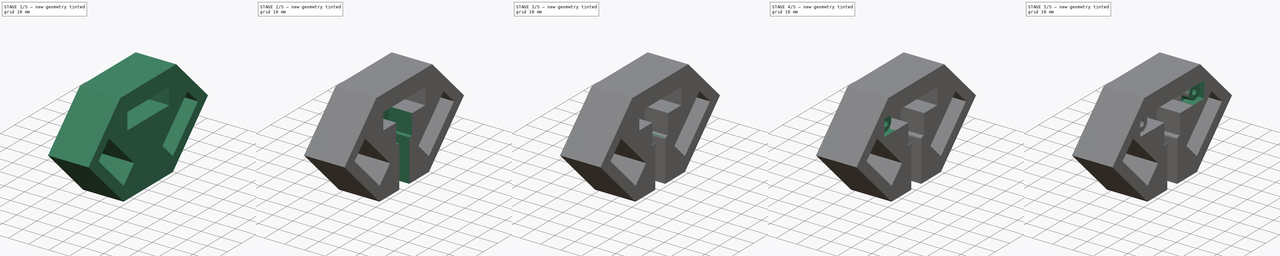
[diagram: build sequence overview — one tinted view per stage of 5, left to right]
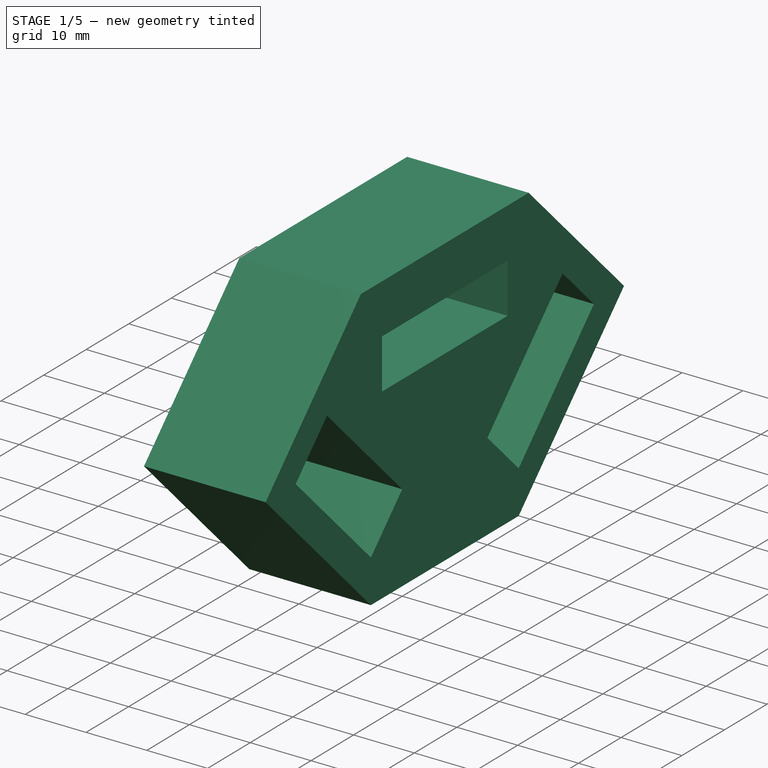
[diagram: stage 1 of 5 — iso view after this stage's code; geometry added in this stage tinted green]
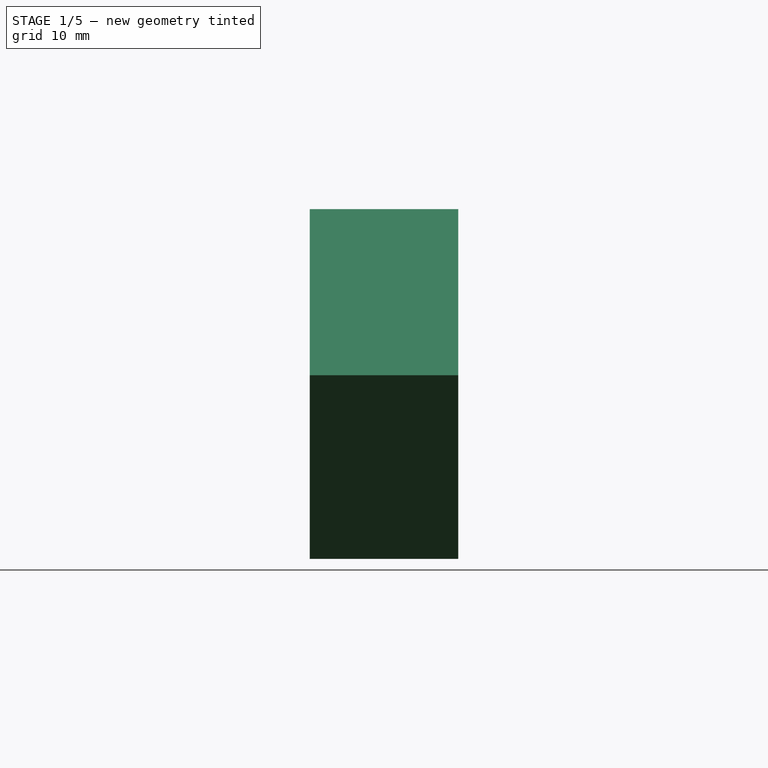
[diagram: stage 1 of 5 — front view after this stage's code; geometry added in this stage tinted green]
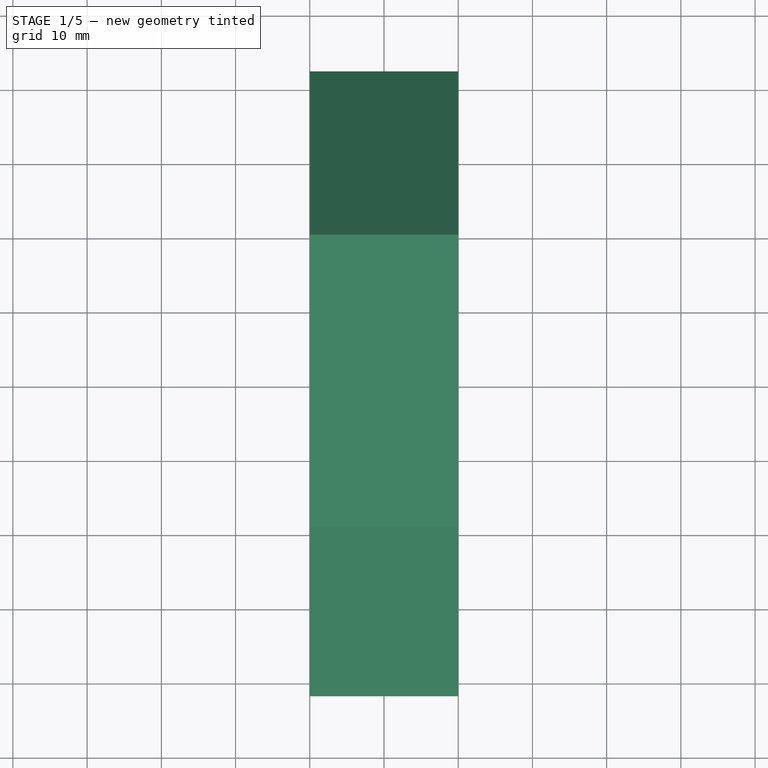
[diagram: stage 1 of 5 — top view after this stage's code; geometry added in this stage tinted green]
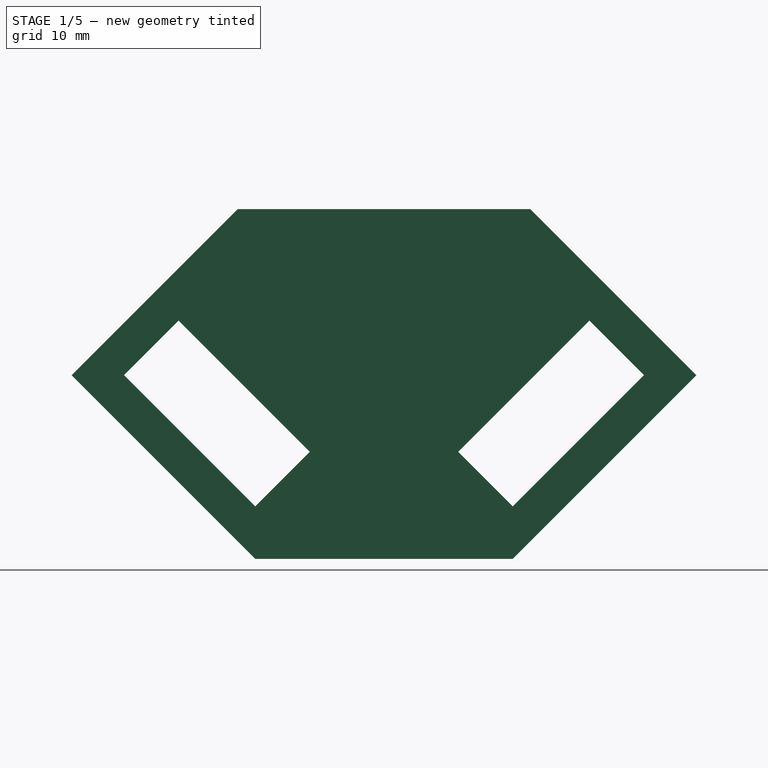
[diagram: stage 1 of 5 — right view after this stage's code; geometry added in this stage tinted green]
FCSTD DOCUMENT  (FreeCAD 0.19R24267 +99 (Git))
Label: Endplatte
License: All rights reserved
LicenseURL: http://en.wikipedia.org/wiki/All_rights_reserved
objects: Sketcher::SketchObject×13, PartDesign::Pocket×10, PartDesign::Pad×3, PartDesign::Fillet×3, PartDesign::Body×1
note: 46 computed .brp shape members not serialized (recipe doc carries the construction recipe); baked Part::Feature solids carry a one-line shape summary decoded from their .brp

FEATURE [Sketcher::SketchObject] Sketch
  FullyConstrained = true
  MapMode = 5
  Placement = pos=(0,0,0) rot=(0.57735,0.57735,0.57735;2.0944rad)
  Support = -> [YZ_Plane001]
  sketch-geometry (46):
    g0: LineSegment StartX=-19.7132 StartY=22.3894 StartZ=0 EndX=19.7132 EndY=22.3894 EndZ=0
    g1: LineSegment StartX=-19.7132 StartY=22.3894 StartZ=0 EndX=-42.1026 EndY=0 EndZ=0
    g2: LineSegment StartX=19.7132 StartY=22.3894 StartZ=0 EndX=42.1026 EndY=0 EndZ=0
    g3: LineSegment StartX=19.7132 StartY=22.3894 StartZ=0 EndX=42.1026 EndY=22.3894 EndZ=0
    g4: LineSegment StartX=42.1026 StartY=22.3894 StartZ=0 EndX=42.1026 EndY=0 EndZ=0
    g5: LineSegment StartX=-19.7132 StartY=22.3894 StartZ=0 EndX=-42.1026 EndY=22.3894 EndZ=0
    g6: LineSegment StartX=-42.1026 StartY=22.3894 StartZ=0 EndX=-42.1026 EndY=0 EndZ=0
    g7: GeomPoint X=0 Y=22.3894 Z=0
    g8: LineSegment StartX=-42.1026 StartY=0 StartZ=0 EndX=-17.3539 EndY=-24.7487 EndZ=0
    g9: LineSegment StartX=-17.3539 StartY=-24.7487 StartZ=0 EndX=17.3539 EndY=-24.7487 EndZ=0
    g10: LineSegment StartX=17.3539 StartY=-24.7487 StartZ=0 EndX=42.1026 EndY=0 EndZ=0
    g11: LineSegment StartX=42.1026 StartY=0 StartZ=0 EndX=42.1026 EndY=-24.7487 EndZ=0
    g12: LineSegment StartX=-42.1026 StartY=0 StartZ=0 EndX=-42.1026 EndY=-24.7487 EndZ=0
    g13: LineSegment StartX=-42.1026 StartY=-24.7487 StartZ=0 EndX=-17.3539 EndY=-24.7487 EndZ=0
    g14: LineSegment StartX=17.3539 StartY=-24.7487 StartZ=0 EndX=42.1026 EndY=-24.7487 EndZ=0
    g15: LineSegment StartX=-24.425 StartY=-24.7487 StartZ=0 EndX=-10 EndY=-10.3238 EndZ=0
    g16: GeomPoint X=-20.8894 Y=-21.2132 Z=0
    g17: LineSegment StartX=-10 StartY=-10.3238 StartZ=0 EndX=-24.425 EndY=-10.3238 EndZ=0
    g18: LineSegment StartX=-24.425 StartY=-10.3238 StartZ=0 EndX=-24.425 EndY=-24.7487 EndZ=0
    g19: LineSegment StartX=24.425 StartY=-24.7487 StartZ=0 EndX=20.8894 EndY=-21.2132 EndZ=0
    g20: LineSegment StartX=20.8894 StartY=-21.2132 StartZ=0 EndX=10 EndY=-10.3238 EndZ=0
    g21: LineSegment StartX=10 StartY=-10.3238 StartZ=0 EndX=24.425 EndY=-10.3238 EndZ=0
    g22: LineSegment StartX=24.425 StartY=-10.3238 StartZ=0 EndX=24.425 EndY=-24.7487 EndZ=0
    g23: LineSegment StartX=-42.1026 StartY=-7.07107 StartZ=0 EndX=-27.6777 EndY=7.35391 EndZ=0
    g24: GeomPoint X=-38.5671 Y=-3.53553 Z=0
    g25: LineSegment StartX=-27.6777 StartY=7.35391 StartZ=0 EndX=-10 EndY=-10.3238 EndZ=0
    g26: LineSegment StartX=-35.0316 StartY=-7.8e-15 StartZ=0 EndX=-17.3539 EndY=-17.6777 EndZ=0
    g27: LineSegment StartX=42.1026 StartY=-7.07107 StartZ=0 EndX=38.5671 EndY=-3.53553 EndZ=0
    g28: LineSegment StartX=38.5671 StartY=-3.53553 StartZ=0 EndX=27.6777 EndY=7.35391 EndZ=0
    g29: LineSegment StartX=27.6777 StartY=7.35391 StartZ=0 EndX=10 EndY=-10.3238 EndZ=0
    g30: LineSegment StartX=35.0316 StartY=-1e-15 StartZ=0 EndX=17.3539 EndY=-17.6777 EndZ=0
    g31: LineSegment StartX=-14.75 StartY=17.3894 StartZ=0 EndX=14.75 EndY=17.3894 EndZ=0
    g32: LineSegment StartX=14.75 StartY=17.3894 StartZ=0 EndX=14.75 EndY=4.38944 EndZ=0
    g33: LineSegment StartX=14.75 StartY=4.38944 StartZ=0 EndX=-14.75 EndY=4.38944 EndZ=0
    g34: LineSegment StartX=-14.75 StartY=4.38944 StartZ=0 EndX=-14.75 EndY=17.3894 EndZ=0
    g35: GeomPoint X=0 Y=17.3894 Z=0
    g36: GeomPoint X=-14.75 Y=10.8894 Z=0
    g37: GeomPoint X=14.75 Y=10.8894 Z=0
    g38: LineSegment StartX=-14.75 StartY=10.8894 StartZ=0 EndX=-18.5 EndY=10.8894 EndZ=0
    g39: Circle CenterX=-18.5 CenterY=10.8894 CenterZ=0 NormalX=0 NormalY=0 NormalZ=1 AngleXU=0 Radius=3.75
    g40: LineSegment StartX=14.75 StartY=10.8894 StartZ=0 EndX=18.5 EndY=10.8894 EndZ=0
    g41: Circle CenterX=18.5 CenterY=10.8894 CenterZ=0 NormalX=0 NormalY=0 NormalZ=1 AngleXU=0 Radius=3.75
    g42: LineSegment StartX=-24.8566 StartY=17.246 StartZ=0 EndX=-18.5 EndY=10.8894 EndZ=0
    g43: LineSegment StartX=-24.8566 StartY=4.53284 StartZ=0 EndX=-18.5 EndY=10.8894 EndZ=0
    g44: LineSegment StartX=-35.0316 StartY=-7.8e-15 StartZ=0 EndX=-38.5671 EndY=3.53553 EndZ=0
    g45: LineSegment StartX=35.0316 StartY=-1e-15 StartZ=0 EndX=38.5671 EndY=3.53553 EndZ=0
  constraints (124):
    c: Horizontal(g0)
    c: Coincident(g1,g0)
    c: Coincident(g2,g0)
    c: Coincident(g3,g0)
    c: Horizontal(g3)
    c: Coincident(g4,g3)
    c: Coincident(g4,g2)
    c: Coincident(g5,g0)
    c: Horizontal(g5)
    c: Coincident(g6,g5)
    c: Coincident(g6,g1)
    c: Vertical(g6)
    c: Equal(g3,g5)
    c: Equal(g6,g4)
    c: Vertical(g4)
    c: Symmetric(g0,g0,g7)
    c: Coincident(g8,g1)
    c: Coincident(g9,g8)
    c: Horizontal(g9)
    c: Coincident(g10,g9)
    c: Coincident(g10,g2)
    c: Coincident(g11,g2)
    c: Vertical(g11)
    c: Coincident(g12,g1)
    c: Vertical(g12)
    c: Coincident(g13,g12)
    c: Coincident(g13,g8)
    c: Horizontal(g13)
    c: Coincident(g14,g9)
    c: Coincident(g14,g11)
    c: Horizontal(g14)
    c: Equal(g14,g13)
    c: Vertical(g7,g-1)
    c: Equal(g13,g12)
    c: Distance(g8) = 35
    c: Equal(g3,g4)
    c: Horizontal(g2,g-1)
    c: PointOnObject(g15,g13)
    c: PointOnObject(g16,g8)
    c: PointOnObject(g16,g15)
    c: Coincident(g17,g15)
    c: Horizontal(g17)
    c: Coincident(g18,g17)
    c: Coincident(g18,g15)
    c: Vertical(g18)
    c: Equal(g17,g18)
    c: PointOnObject(g19,g14)
    c: PointOnObject(g19,g10)
    c: Coincident(g20,g19)
    c: Parallel(g20,g19)
    c: Coincident(g21,g20)
    c: Horizontal(g21)
    c: Coincident(g22,g21)
    c: Coincident(g22,g19)
    c: Vertical(g22)
    c: Equal(g22,g21)
    c: Distance(g15,g20) = 20
    c: PointOnObject(g23,g12)
    c: PointOnObject(g24,g23)
    c: PointOnObject(g24,g8)
    c: Parallel(g15,g23)
    c: Coincident(g25,g23)
    c: Coincident(g25,g15)
    c: Parallel(g25,g8)
    c: PointOnObject(g26,g23)
    c: PointOnObject(g26,g15)
    c: Distance(g26,g23) = 10.4
    c: PointOnObject(g27,g11)
    c: PointOnObject(g27,g10)
    c: Coincident(g28,g27)
    c: Parallel(g27,g28)
    c: Parallel(g25,g26)
    c: Parallel(g20,g28)
    c: Coincident(g29,g28)
    c: Coincident(g29,g20)
    c: PointOnObject(g30,g28)
    c: PointOnObject(g30,g20)
    c: Parallel(g30,g29)
    c: Distance(g30,g28) = 10.4
    c: Parallel(g10,g29)
    c: Coincident(g31,g32)
    c: Coincident(g32,g33)
    c: Coincident(g33,g34)
    c: Coincident(g34,g31)
    c: Horizontal(g31)
    c: Horizontal(g33)
    c: Vertical(g32)
    c: Vertical(g34)
    c: DistanceX(g31,g31) = 29.5
    c: DistanceY(g32,g32) = 13
    c: Symmetric(g31,g31,g35)
    c: PointOnObject(g35,g-2)
    c: Distance(g7,g35) = 5
    c: Symmetric(g31,g33,g36)
    c: Symmetric(g31,g32,g37)
    c: Coincident(g38,g36)
    c: Horizontal(g38)
    c: Coincident(g39,g38)
    c: PointOnObject(g36,g39)
    c: Coincident(g40,g37)
    c: Horizontal(g40)
    c: Coincident(g41,g40)
    c: PointOnObject(g37,g41)
    c: DistanceX(g40,g40) = 3.75
    c: Equal(g40,g38)
    c: Coincident(g42,g38)
    c: PointOnObject(g43,g25)
    c: Coincident(g43,g38)
    c: Parallel(g23,g43)
    c: Equal(g42,g43)
    c: Parallel(g25,g42)
    c: PointOnObject(g42,g1)
    c: Distance(g30,g19) = 5
    c: Distance(g26,g16) = 5
    c: Distance(g30) = 25
    c: Distance(g26) = 25
    c: Coincident(g44,g26)
    c: PointOnObject(g44,g1)
    c: Perpendicular(g1,g44)
    c: Distance(g44) = 5
    c: Coincident(g45,g30)
    c: PointOnObject(g45,g2)
    c: Distance(g45) = 5
    c: Perpendicular(g45,g2)
FEATURE [PartDesign::Pad] Pad
  Direction = (1,1,1)
  Length = 20
  Length2 = 100
  Placement = pos=(0,0,0) rot=(0.57735,0.57735,0.57735;2.0944rad)
  Profile = -> Sketch
  Type = 0
FEATURE [Sketcher::SketchObject] Sketch001
  ExternalGeometry = -> [Pad]
  FullyConstrained = true
  MapMode = 5
  Placement = pos=(20,-8.9e-15,6.7e-15) rot=(0.57735,0.57735,0.57735;2.0944rad)
  Support = -> [Pad]
  sketch-geometry (16):
    g0: LineSegment StartX=-35.0316 StartY=2.22e-14 StartZ=0 EndX=-17.3539 EndY=-17.6777 EndZ=0
    g1: LineSegment StartX=-17.3539 StartY=-17.6777 StartZ=0 EndX=-10 EndY=-10.3238 EndZ=0
    g2: LineSegment StartX=-10 StartY=-10.3238 StartZ=0 EndX=-27.6777 EndY=7.35391 EndZ=0
    g3: LineSegment StartX=-27.6777 StartY=7.35391 StartZ=0 EndX=-35.0316 EndY=2.22e-14 EndZ=0
    g4: GeomPoint X=-29.7283 Y=-12.3744 Z=0
    g5: GeomPoint X=-26.1927 Y=-8.83883 Z=0
    g6: LineSegment StartX=10 StartY=-10.3238 StartZ=0 EndX=27.6777 EndY=7.35391 EndZ=0
    g7: LineSegment StartX=17.3539 StartY=-17.6777 StartZ=0 EndX=35.0316 EndY=-1.78e-14 EndZ=0
    g8: LineSegment StartX=27.6777 StartY=7.35391 StartZ=0 EndX=35.0316 EndY=-1.78e-14 EndZ=0
    g9: LineSegment StartX=10 StartY=-10.3238 StartZ=0 EndX=17.3539 EndY=-17.6777 EndZ=0
    g10: GeomPoint X=26.1927 Y=-8.83883 Z=0
    g11: GeomPoint X=29.7283 Y=-12.3744 Z=0
    g12: LineSegment StartX=-35.0316 StartY=2.22e-14 StartZ=0 EndX=-38.5671 EndY=-3.53553 EndZ=0
    g13: LineSegment StartX=-35.0316 StartY=2.22e-14 StartZ=0 EndX=-38.5671 EndY=3.53553 EndZ=0
    g14: LineSegment StartX=35.0316 StartY=-1.78e-14 StartZ=0 EndX=38.5671 EndY=3.53553 EndZ=0
    g15: LineSegment StartX=35.0316 StartY=-1.78e-14 StartZ=0 EndX=38.5671 EndY=-3.53553 EndZ=0
  constraints (40):
    c: Coincident(g1,g0)
    c: Coincident(g2,g1)
    c: Coincident(g3,g2)
    c: Coincident(g3,g0)
    c: Parallel(g1,g3)
    c: Parallel(g2,g0)
    c: Parallel(g0,g-3)
    c: Perpendicular(g0,g1)
    c: Distance(g0) = 25
    c: Distance(g1) = 10.4
    c: Symmetric(g0,g0,g5)
    c: Symmetric(g-3,g-3,g4)
    c: Coincident(g8,g6)
    c: Coincident(g8,g7)
    c: Coincident(g9,g6)
    c: Coincident(g9,g7)
    c: Parallel(g7,g6)
    c: Parallel(g7,g-4)
    c: Parallel(g8,g9)
    c: Perpendicular(g7,g8)
    c: Distance(g6) = 25
    c: Distance(g8) = 10.4
    c: Symmetric(g7,g7,g10)
    c: Symmetric(g-4,g-4,g11)
    c: Coincident(g12,g0)
    c: PointOnObject(g12,g-3)
    c: Coincident(g13,g0)
    c: Coincident(g14,g7)
    c: PointOnObject(g13,g-6)
    c: PointOnObject(g14,g-5)
    c: Coincident(g15,g7)
    c: PointOnObject(g15,g-4)
    c: Perpendicular(g-4,g15)
    c: Perpendicular(g-5,g14)
    c: Perpendicular(g-6,g13)
    c: Perpendicular(g-3,g12)
    c: Distance(g15) = 5
    c: Distance(g13) = 5
    c: Distance(g12) = 5
    c: Distance(g14) = 5
FEATURE [PartDesign::Pocket] Pocket
  BaseFeature = -> Pad
  Length = 20
  Length2 = 100
  Placement = pos=(0,0,0) rot=(0.57735,0.57735,0.57735;2.0944rad)
  Profile = -> Sketch001
  Type = 0
FEATURE [Sketcher::SketchObject] Sketch002
  ExternalGeometry = -> [Pocket]
  FullyConstrained = true
  MapMode = 5
  Placement = pos=(20,-1.33e-14,8.9e-15) rot=(0.57735,0.57735,0.57735;2.0944rad)
  Support = -> [Pocket]
  sketch-geometry (8):
    g0: LineSegment StartX=-14.75 StartY=14.2033 StartZ=0 EndX=14.75 EndY=14.2033 EndZ=0
    g1: LineSegment StartX=14.75 StartY=14.2033 StartZ=0 EndX=14.75 EndY=6.00326 EndZ=0
    g2: LineSegment StartX=14.75 StartY=6.00326 StartZ=0 EndX=-14.75 EndY=6.00326 EndZ=0
    g3: LineSegment StartX=-14.75 StartY=6.00326 StartZ=0 EndX=-14.75 EndY=14.2033 EndZ=0
    g4: GeomPoint X=0 Y=14.2033 Z=0
    g5: GeomPoint X=0 Y=22.3894 Z=0
    g6: LineSegment StartX=0 StartY=22.3894 StartZ=0 EndX=0 EndY=14.2033 EndZ=0
    g7: LineSegment StartX=-14.75 StartY=6.00326 StartZ=0 EndX=-20.5385 EndY=0.214749 EndZ=0
  constraints (20):
    c: Coincident(g0,g1)
    c: Coincident(g1,g2)
    c: Coincident(g2,g3)
    c: Coincident(g3,g0)
    c: Horizontal(g0)
    c: Horizontal(g2)
    c: Vertical(g1)
    c: Vertical(g3)
    c: Distance(g2) = 29.5
    c: Distance(g1) = 8.2
    c: Symmetric(g0,g0,g4)
    c: PointOnObject(g4,g-2)
    c: PointOnObject(g5,g-2)
    c: PointOnObject(g5,g-3)
    c: Coincident(g6,g5)
    c: Coincident(g6,g4)
    c: Coincident(g7,g2)
    c: PointOnObject(g7,g-4)
    c: Perpendicular(g7,g-4)
    c: Equal(g6,g7)
FEATURE [PartDesign::Pocket] Pocket001
  BaseFeature = -> Pocket
  Length = 18
  Length2 = 100
  Placement = pos=(0,0,0) rot=(0.57735,0.57735,0.57735;2.0944rad)
  Profile = -> Sketch002
  Type = 0
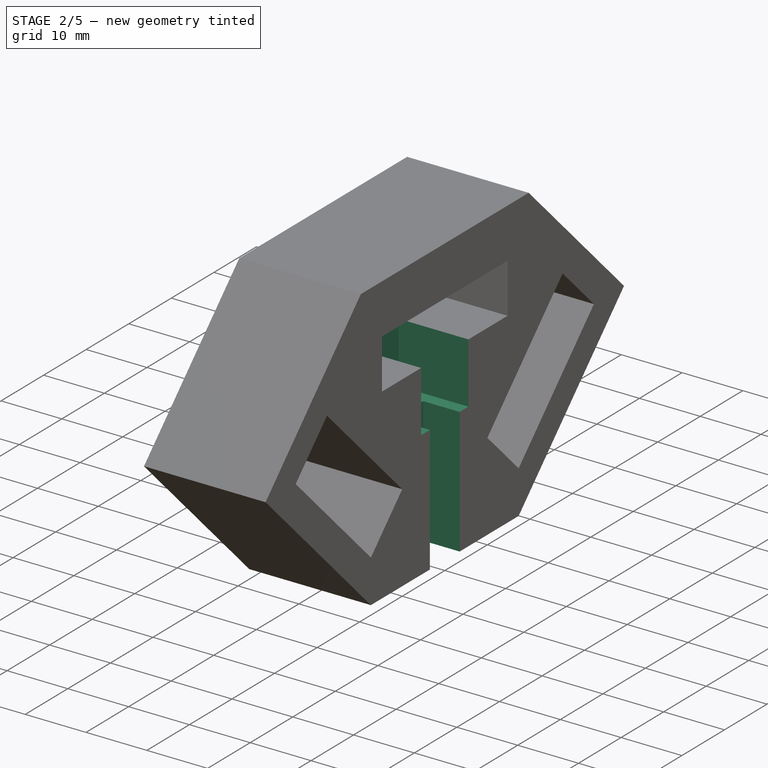
[diagram: stage 2 of 5 — iso view after this stage's code; geometry added in this stage tinted green]
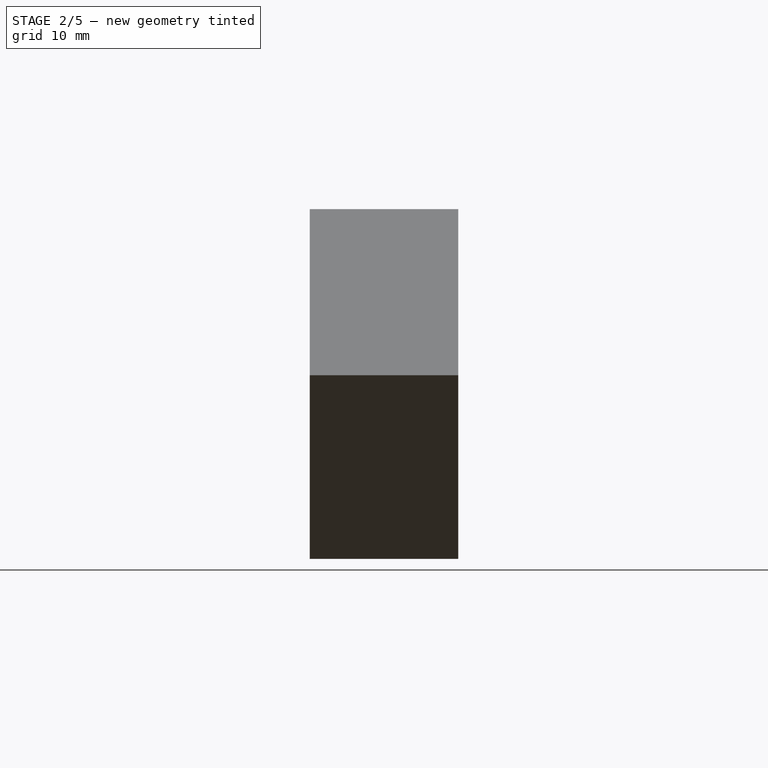
[diagram: stage 2 of 5 — front view after this stage's code; geometry added in this stage tinted green]
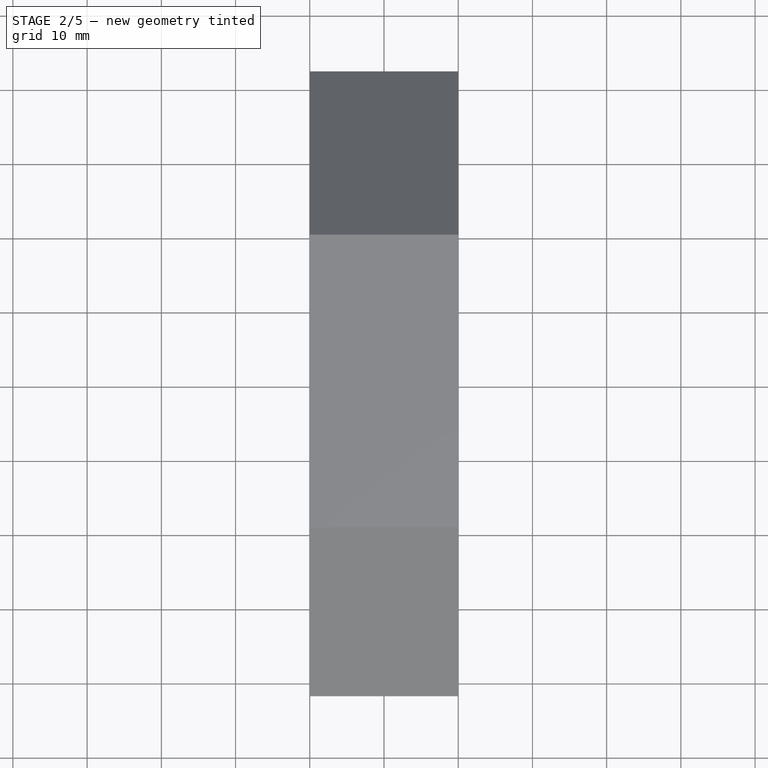
[diagram: stage 2 of 5 — top view after this stage's code; geometry added in this stage tinted green]
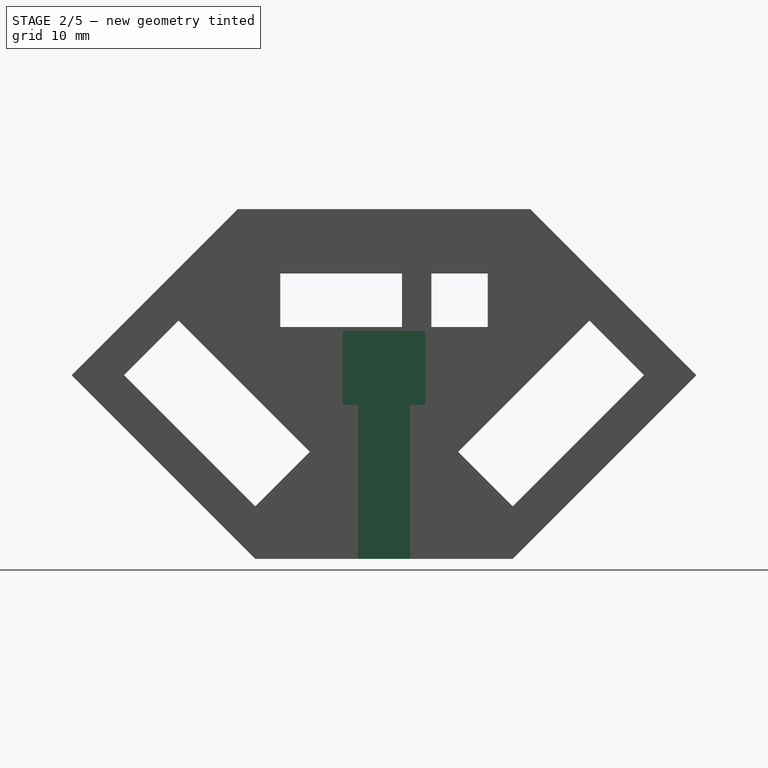
[diagram: stage 2 of 5 — right view after this stage's code; geometry added in this stage tinted green]
FEATURE [Sketcher::SketchObject] Sketch003
  ExternalGeometry = -> [Pocket001]
  FullyConstrained = true
  MapMode = 5
  Placement = pos=(2,-1.9e-15,1.1e-15) rot=(0.57735,0.57735,0.57735;2.0944rad)
  Support = -> [Pocket001]
  sketch-geometry (14):
    g0: LineSegment StartX=-13.975 StartY=13.7033 StartZ=0 EndX=2.425 EndY=13.7033 EndZ=0
    g1: LineSegment StartX=2.425 StartY=13.7033 StartZ=0 EndX=2.425 EndY=6.50326 EndZ=0
    g2: LineSegment StartX=2.425 StartY=6.50326 StartZ=0 EndX=-13.975 EndY=6.50326 EndZ=0
    g3: LineSegment StartX=-13.975 StartY=6.50326 StartZ=0 EndX=-13.975 EndY=13.7033 EndZ=0
    g4: LineSegment StartX=6.375 StartY=13.7033 StartZ=0 EndX=13.975 EndY=13.7033 EndZ=0
    g5: LineSegment StartX=13.975 StartY=13.7033 StartZ=0 EndX=13.975 EndY=6.50326 EndZ=0
    g6: LineSegment StartX=13.975 StartY=6.50326 StartZ=0 EndX=6.375 EndY=6.50326 EndZ=0
    g7: LineSegment StartX=6.375 StartY=6.50326 StartZ=0 EndX=6.375 EndY=13.7033 EndZ=0
    g8: LineSegment StartX=2.425 StartY=13.7033 StartZ=0 EndX=6.375 EndY=13.7033 EndZ=0
    g9: LineSegment StartX=2.425 StartY=6.50326 StartZ=0 EndX=6.375 EndY=6.50326 EndZ=0
    g10: LineSegment StartX=13.975 StartY=13.7033 StartZ=0 EndX=14.75 EndY=13.7033 EndZ=0
    g11: LineSegment StartX=-13.975 StartY=13.7033 StartZ=0 EndX=-14.75 EndY=13.7033 EndZ=0
    g12: LineSegment StartX=6.375 StartY=13.7033 StartZ=0 EndX=6.375 EndY=14.2033 EndZ=0
    g13: LineSegment StartX=6.375 StartY=6.50326 StartZ=0 EndX=6.375 EndY=6.00326 EndZ=0
  constraints (40):
    c: Coincident(g0,g1)
    c: Coincident(g1,g2)
    c: Coincident(g2,g3)
    c: Coincident(g3,g0)
    c: Horizontal(g0)
    c: Horizontal(g2)
    c: Vertical(g1)
    c: Vertical(g3)
    c: Coincident(g4,g5)
    c: Coincident(g5,g6)
    c: Coincident(g6,g7)
    c: Coincident(g7,g4)
    c: Horizontal(g4)
    c: Horizontal(g6)
    c: Vertical(g5)
    c: Vertical(g7)
    c: Coincident(g8,g0)
    c: Coincident(g8,g4)
    c: Horizontal(g8)
    c: Coincident(g9,g1)
    c: Coincident(g9,g6)
    c: Horizontal(g9)
    c: DistanceX(g4,g4) = 7.6
    c: DistanceX(g0,g0) = 16.4
    c: DistanceX(g8,g8) = 3.95
    c: Coincident(g10,g4)
    c: PointOnObject(g10,g-4)
    c: Coincident(g11,g0)
    c: PointOnObject(g11,g-5)
    c: Horizontal(g11)
    c: Horizontal(g10)
    c: Equal(g11,g10)
    c: Coincident(g12,g4)
    c: PointOnObject(g12,g-6)
    c: Vertical(g12)
    c: Coincident(g13,g6)
    c: PointOnObject(g13,g-7)
    c: Vertical(g13)
    c: DistanceY(g12,g12) = 0.5
    c: Equal(g12,g13)
FEATURE [PartDesign::Pocket] Pocket002
  BaseFeature = -> Pocket001
  Length = 5
  Length2 = 100
  Placement = pos=(0,0,0) rot=(0.57735,0.57735,0.57735;2.0944rad)
  Profile = -> Sketch003
  Type = 0
FEATURE [Sketcher::SketchObject] Sketch004
  ExternalGeometry = -> [Pocket002]
  FullyConstrained = true
  MapMode = 5
  Placement = pos=(20,-2.22e-14,1.33e-14) rot=(0.57735,0.57735,0.57735;2.0944rad)
  Support = -> [Pocket002]
  sketch-geometry (5):
    g0: LineSegment StartX=-5.55 StartY=-3.99674 StartZ=0 EndX=5.55 EndY=-3.99674 EndZ=0
    g1: LineSegment StartX=5.55 StartY=-3.99674 StartZ=0 EndX=5.55 EndY=6.00326 EndZ=0
    g2: LineSegment StartX=5.55 StartY=6.00326 StartZ=0 EndX=-5.55 EndY=6.00326 EndZ=0
    g3: LineSegment StartX=-5.55 StartY=6.00326 StartZ=0 EndX=-5.55 EndY=-3.99674 EndZ=0
    g4: GeomPoint X=0 Y=6.00326 Z=0
  constraints (13):
    c: Coincident(g0,g1)
    c: Coincident(g1,g2)
    c: Coincident(g2,g3)
    c: Coincident(g3,g0)
    c: Horizontal(g0)
    c: Horizontal(g2)
    c: Vertical(g1)
    c: Vertical(g3)
    c: PointOnObject(g1,g-4)
    c: PointOnObject(g4,g-2)
    c: Symmetric(g2,g1,g4)
    c: DistanceX(g2,g2) = 11.1
    c: DistanceY(g3,g3) = 10
FEATURE [PartDesign::Pocket] Pocket003
  BaseFeature = -> Pocket002
  Length = 11.5
  Length2 = 100
  Placement = pos=(0,0,0) rot=(0.57735,0.57735,0.57735;2.0944rad)
  Profile = -> Sketch004
  Type = 0
FEATURE [Sketcher::SketchObject] Sketch005
  ExternalGeometry = -> [Pocket003]
  FullyConstrained = true
  MapMode = 5
  Placement = pos=(20,-2.66e-14,1.55e-14) rot=(0.57735,0.57735,0.57735;2.0944rad)
  Support = -> [Pocket003]
  sketch-geometry (5):
    g0: LineSegment StartX=-3.5 StartY=-3.99674 StartZ=0 EndX=-3.5 EndY=-24.7487 EndZ=0
    g1: LineSegment StartX=3.5 StartY=-3.99674 StartZ=0 EndX=3.5 EndY=-24.7487 EndZ=0
    g2: GeomPoint X=0 Y=-3.99674 Z=0
    g3: LineSegment StartX=-3.5 StartY=-3.99674 StartZ=0 EndX=3.5 EndY=-3.99674 EndZ=0
    g4: LineSegment StartX=-3.5 StartY=-24.7487 StartZ=0 EndX=3.5 EndY=-24.7487 EndZ=0
  constraints (13):
    c: PointOnObject(g0,g-4)
    c: Vertical(g0)
    c: PointOnObject(g1,g-4)
    c: Vertical(g1)
    c: PointOnObject(g2,g-2)
    c: Symmetric(g0,g1,g2)
    c: Distance(g0,g1) = 7
    c: Coincident(g3,g0)
    c: Coincident(g3,g1)
    c: Coincident(g4,g0)
    c: Coincident(g4,g1)
    c: PointOnObject(g1,g-5)
    c: PointOnObject(g0,g-5)
FEATURE [PartDesign::Pocket] Pocket004
  BaseFeature = -> Pocket003
  Length = 6
  Length2 = 100
  Placement = pos=(0,0,0) rot=(0.57735,0.57735,0.57735;2.0944rad)
  Profile = -> Sketch005
  Type = 0
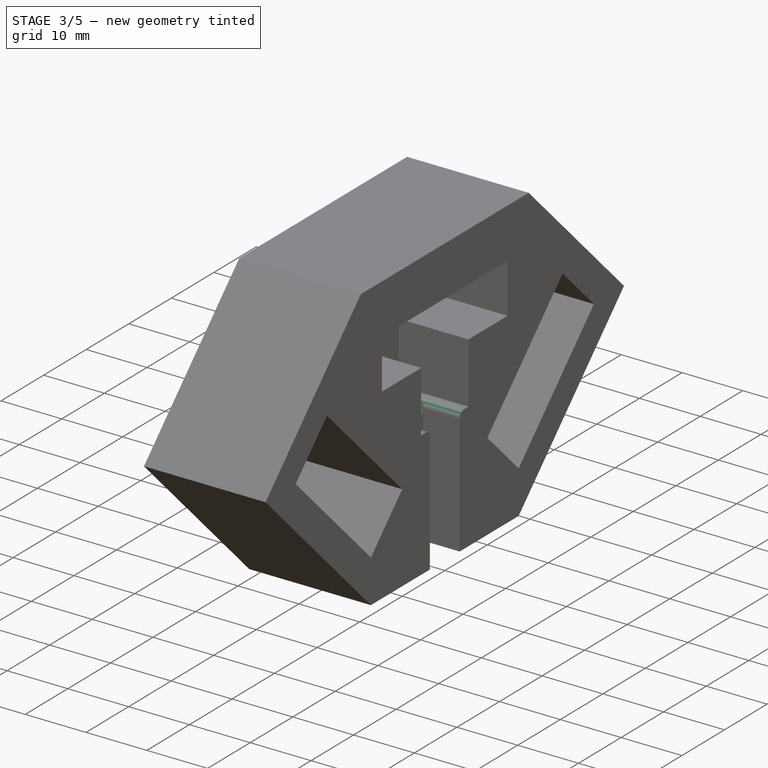
[diagram: stage 3 of 5 — iso view after this stage's code; geometry added in this stage tinted green]
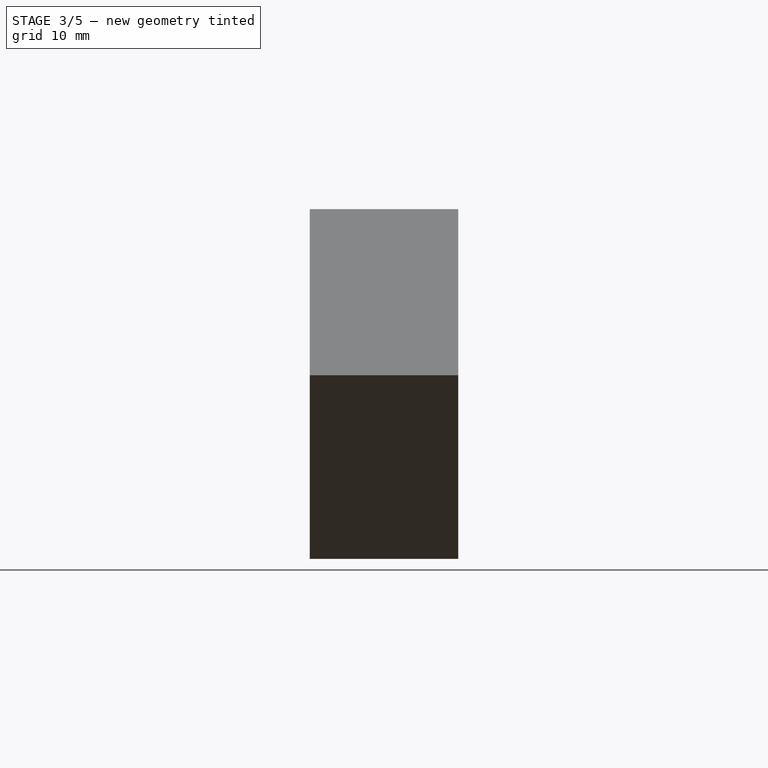
[diagram: stage 3 of 5 — front view after this stage's code; geometry added in this stage tinted green]
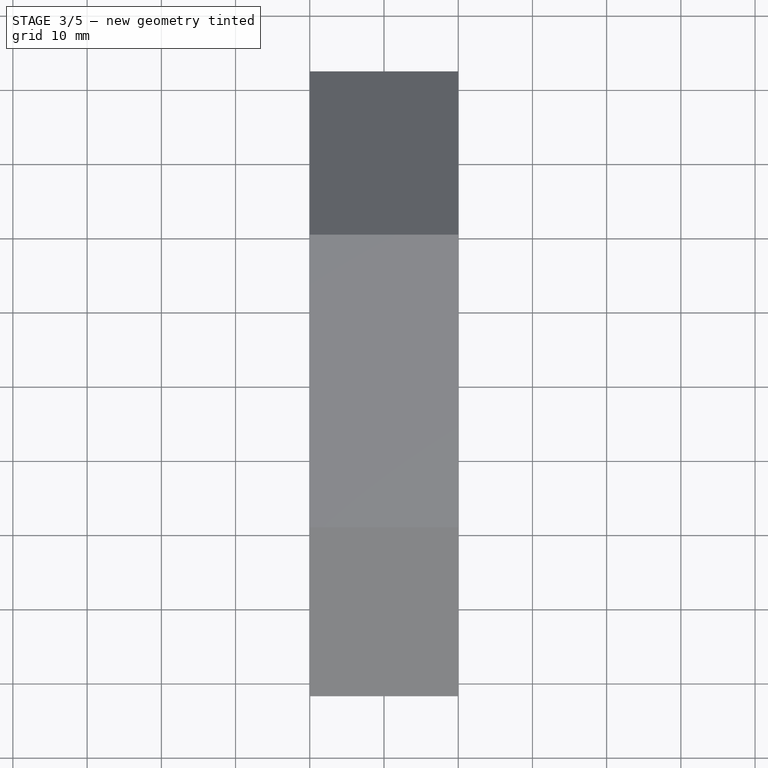
[diagram: stage 3 of 5 — top view after this stage's code; geometry added in this stage tinted green]
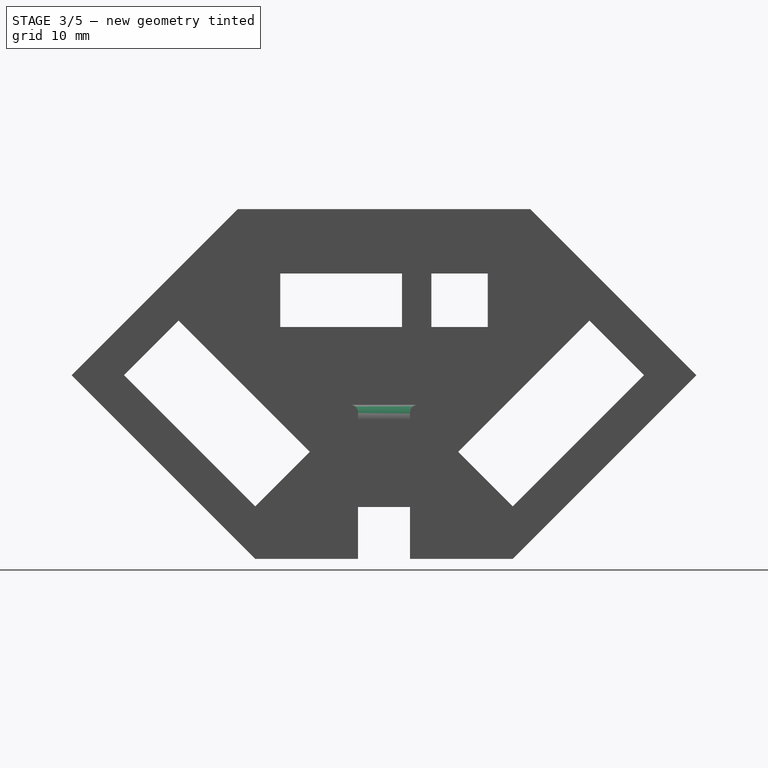
[diagram: stage 3 of 5 — right view after this stage's code; geometry added in this stage tinted green]
FEATURE [PartDesign::Fillet] Fillet
  Base = -> Pocket004 [Edge84]
  BaseFeature = -> Pocket004
  Placement = pos=(0,0,0) rot=(0.57735,0.57735,0.57735;2.0944rad)
  Radius = 2
  SupportTransform = false
FEATURE [PartDesign::Fillet] Fillet001
  Base = -> Fillet [Edge6]
  BaseFeature = -> Fillet
  Placement = pos=(0,0,0) rot=(0.57735,0.57735,0.57735;2.0944rad)
  Radius = 1
  SupportTransform = false
FEATURE [PartDesign::Fillet] Fillet002
  Base = -> Fillet001 [Edge51]
  BaseFeature = -> Fillet001
  Placement = pos=(0,0,0) rot=(0.57735,0.57735,0.57735;2.0944rad)
  Radius = 1
  SupportTransform = false
FEATURE [Sketcher::SketchObject] Sketch007
  ExternalGeometry = -> [Fillet002]
  FullyConstrained = true
  MapMode = 5
  Placement = pos=(5.08e-14,-2.75e-14,-24.7487) rot=(0.707107,0.707107,0;3.14159rad)
  Support = -> [Fillet002]
  sketch-geometry (4):
    g0: LineSegment StartX=-3.5 StartY=14 StartZ=0 EndX=-3.5 EndY=-7.1e-15 EndZ=0
    g1: LineSegment StartX=3.5 StartY=14 StartZ=0 EndX=3.5 EndY=-7.1e-15 EndZ=0
    g2: LineSegment StartX=-3.5 StartY=14 StartZ=0 EndX=3.5 EndY=14 EndZ=0
    g3: LineSegment StartX=-3.5 StartY=-7.1e-15 StartZ=0 EndX=3.5 EndY=-7.1e-15 EndZ=0
  constraints (10):
    c: Coincident(g0,g-3)
    c: PointOnObject(g0,g-4)
    c: Vertical(g0)
    c: Coincident(g1,g-3)
    c: PointOnObject(g1,g-4)
    c: Vertical(g1)
    c: Coincident(g2,g0)
    c: Coincident(g3,g0)
    c: Coincident(g2,g1)
    c: Coincident(g3,g1)
FEATURE [PartDesign::Pocket] Pocket005
  BaseFeature = -> Fillet002
  Length = 7
  Length2 = 100
  Placement = pos=(0,0,0) rot=(0.57735,0.57735,0.57735;2.0944rad)
  Profile = -> Sketch007
  Type = 0
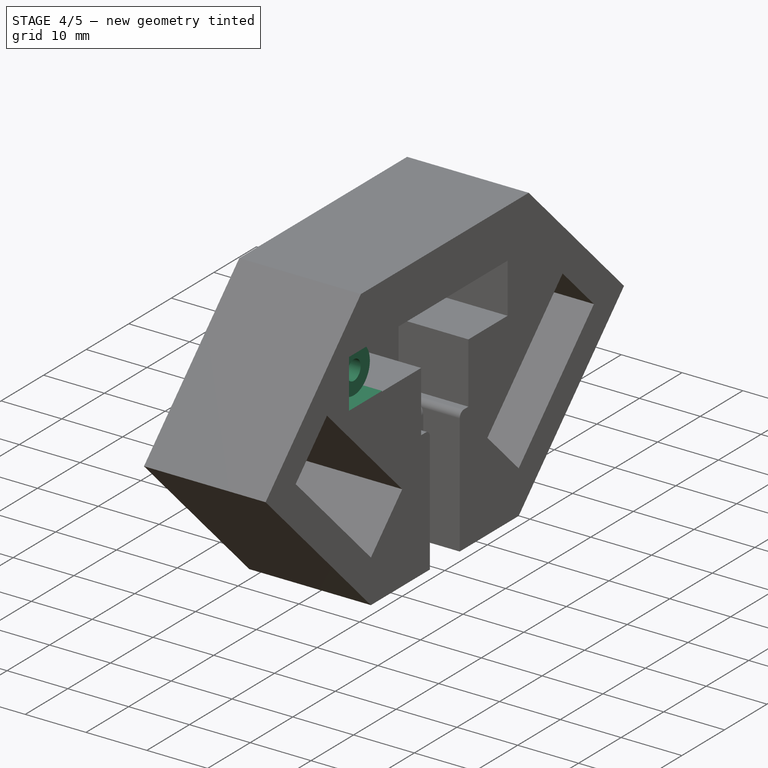
[diagram: stage 4 of 5 — iso view after this stage's code; geometry added in this stage tinted green]
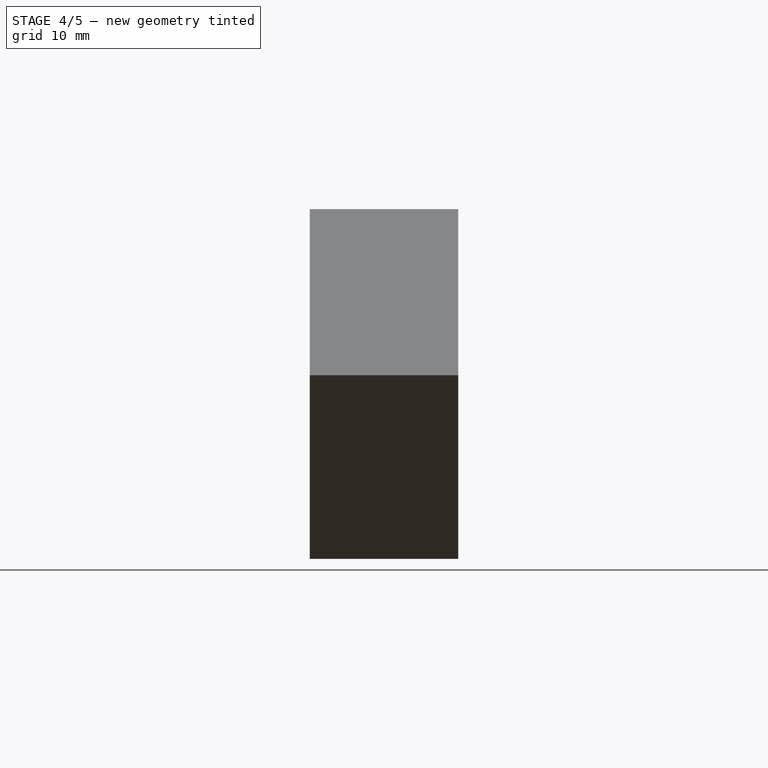
[diagram: stage 4 of 5 — front view after this stage's code; geometry added in this stage tinted green]
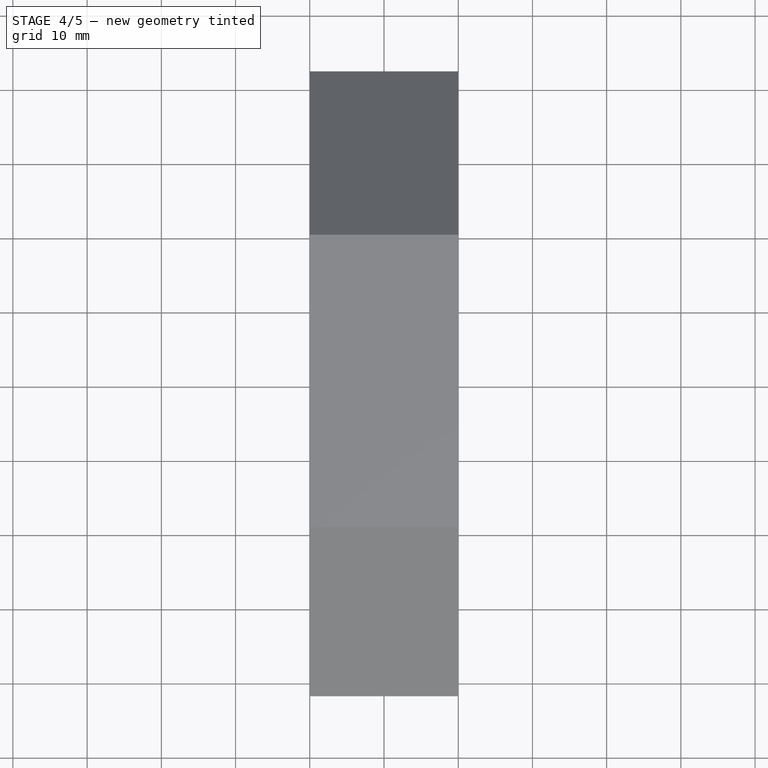
[diagram: stage 4 of 5 — top view after this stage's code; geometry added in this stage tinted green]
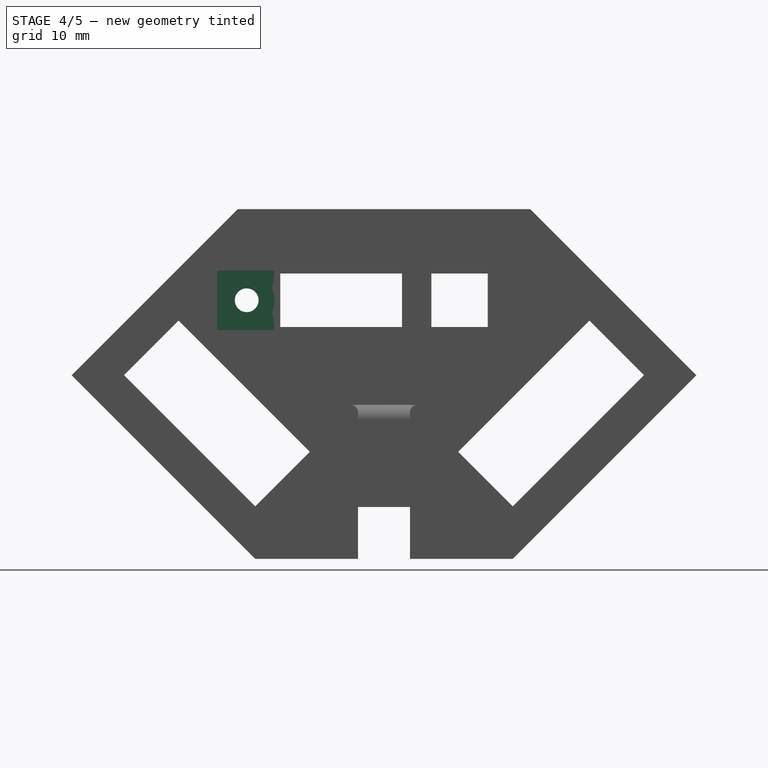
[diagram: stage 4 of 5 — right view after this stage's code; geometry added in this stage tinted green]
FEATURE [Sketcher::SketchObject] Sketch008
  ExternalGeometry = -> [Pocket005]
  FullyConstrained = true
  MapMode = 5
  Placement = pos=(20,-3.55e-14,2e-14) rot=(0.57735,0.57735,0.57735;2.0944rad)
  Support = -> [Pocket005]
  sketch-geometry (10):
    g0: Circle CenterX=-18.5 CenterY=10.1033 CenterZ=0 NormalX=0 NormalY=0 NormalZ=1 AngleXU=0 Radius=3.75
    g1: GeomPoint X=-14.75 Y=10.1033 Z=0
    g2: LineSegment StartX=-22.5 StartY=6.10326 StartZ=0 EndX=-14.75 EndY=6.10326 EndZ=0
    g3: LineSegment StartX=-14.75 StartY=6.10326 StartZ=0 EndX=-14.75 EndY=14.1033 EndZ=0
    g4: LineSegment StartX=-14.75 StartY=14.1033 StartZ=0 EndX=-22.5 EndY=14.1033 EndZ=0
    g5: LineSegment StartX=-22.5 StartY=14.1033 StartZ=0 EndX=-22.5 EndY=6.10326 EndZ=0
    g6: GeomPoint X=-18.5 Y=13.8533 Z=0
    g7: GeomPoint X=-18.5 Y=6.35326 Z=0
    g8: GeomPoint X=-22.25 Y=10.1033 Z=0
    g9: GeomPoint X=-22.5 Y=10.1033 Z=0
  constraints (23):
    c: Radius(g0) = 3.75
    c: DistanceX(g0,g-1) = 18.5
    c: Symmetric(g-3,g-4,g1)
    c: Horizontal(g1,g0)
    c: Coincident(g2,g3)
    c: Coincident(g3,g4)
    c: Coincident(g4,g5)
    c: Coincident(g5,g2)
    c: Horizontal(g2)
    c: Horizontal(g4)
    c: Vertical(g3)
    c: Vertical(g5)
    c: PointOnObject(g6,g0)
    c: PointOnObject(g7,g0)
    c: Vertical(g0,g6)
    c: Vertical(g0,g7)
    c: PointOnObject(g8,g0)
    c: Horizontal(g0,g8)
    c: Symmetric(g4,g2,g9)
    c: Horizontal(g9,g8)
    c: PointOnObject(g3,g-5)
    c: DistanceY(g6,g4) = 0.25
    c: DistanceX(g9,g8) = 0.25
FEATURE [PartDesign::Pocket] Pocket006
  BaseFeature = -> Pocket005
  Length = 6
  Length2 = 100
  Placement = pos=(0,0,0) rot=(0.57735,0.57735,0.57735;2.0944rad)
  Profile = -> Sketch008
  Type = 0
FEATURE [Sketcher::SketchObject] Sketch009
  ExternalGeometry = -> [Pocket006]
  FullyConstrained = true
  MapMode = 5
  Placement = pos=(14,-2.88e-14,1.4e-14) rot=(0.57735,0.57735,0.57735;2.0944rad)
  Support = -> [Pocket006]
  sketch-geometry (2):
    g0: Circle CenterX=-18.5 CenterY=10.1033 CenterZ=0 NormalX=0 NormalY=0 NormalZ=1 AngleXU=0 Radius=3.75
    g1: GeomPoint X=-14.75 Y=10.1033 Z=0
  constraints (4):
    c: Radius(g0) = 3.75
    c: Symmetric(g-5,g-5,g1)
    c: Horizontal(g1,g0)
    c: PointOnObject(g1,g0)
FEATURE [PartDesign::Pad] Pad001
  BaseFeature = -> Pocket006
  Direction = (1,1,1)
  Length = 4
  Length2 = 100
  Placement = pos=(0,0,0) rot=(0.57735,0.57735,0.57735;2.0944rad)
  Profile = -> Sketch009
  Type = 0
FEATURE [Sketcher::SketchObject] Sketch010
  ExternalGeometry = -> [Pad001]
  FullyConstrained = true
  MapMode = 5
  Placement = pos=(18,-4.09e-14,1.68e-14) rot=(0.57735,0.57735,0.57735;2.0944rad)
  Support = -> [Pad001]
  sketch-geometry (1):
    g0: Circle CenterX=-18.5 CenterY=10.1033 CenterZ=0 NormalX=0 NormalY=0 NormalZ=1 AngleXU=0 Radius=1.6
  constraints (2):
    c: Radius(g0) = 1.6
    c: Coincident(g0,g-4)
FEATURE [PartDesign::Pocket] Pocket007
  BaseFeature = -> Pad001
  Length = 20
  Length2 = 100
  Placement = pos=(0,0,0) rot=(0.57735,0.57735,0.57735;2.0944rad)
  Profile = -> Sketch010
  Type = 0
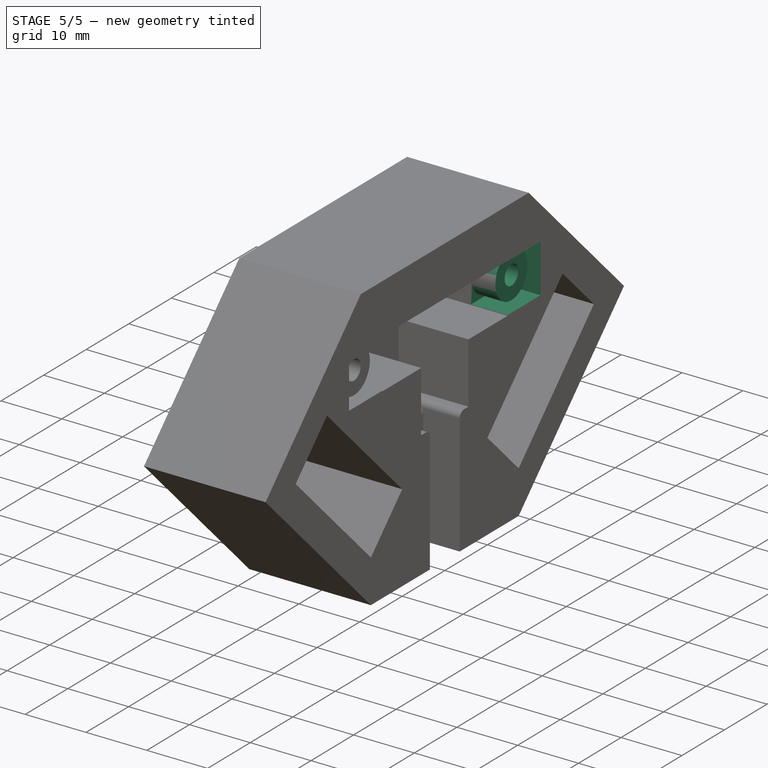
[diagram: stage 5 of 5 — iso view after this stage's code; geometry added in this stage tinted green]
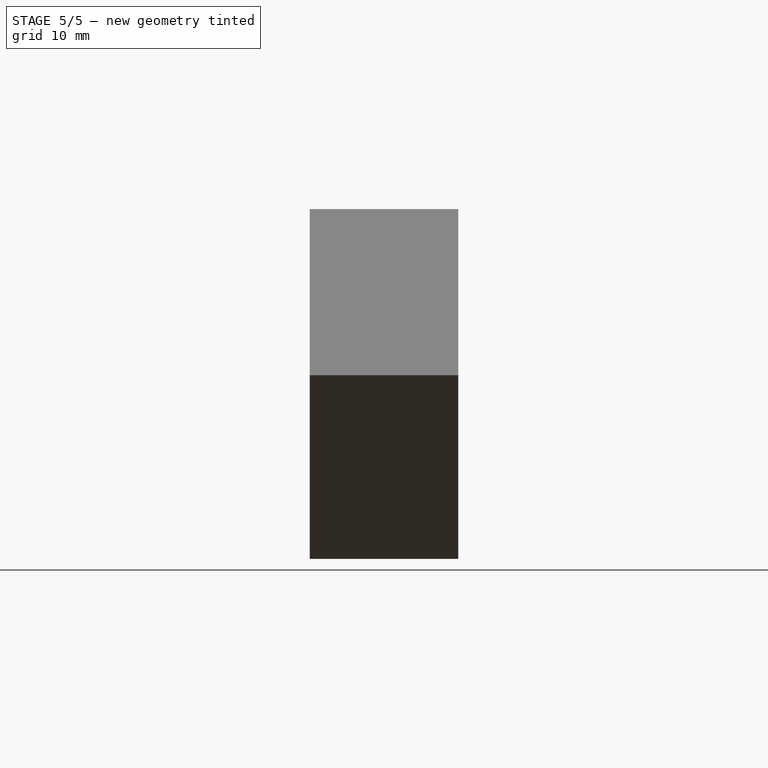
[diagram: stage 5 of 5 — front view after this stage's code; geometry added in this stage tinted green]
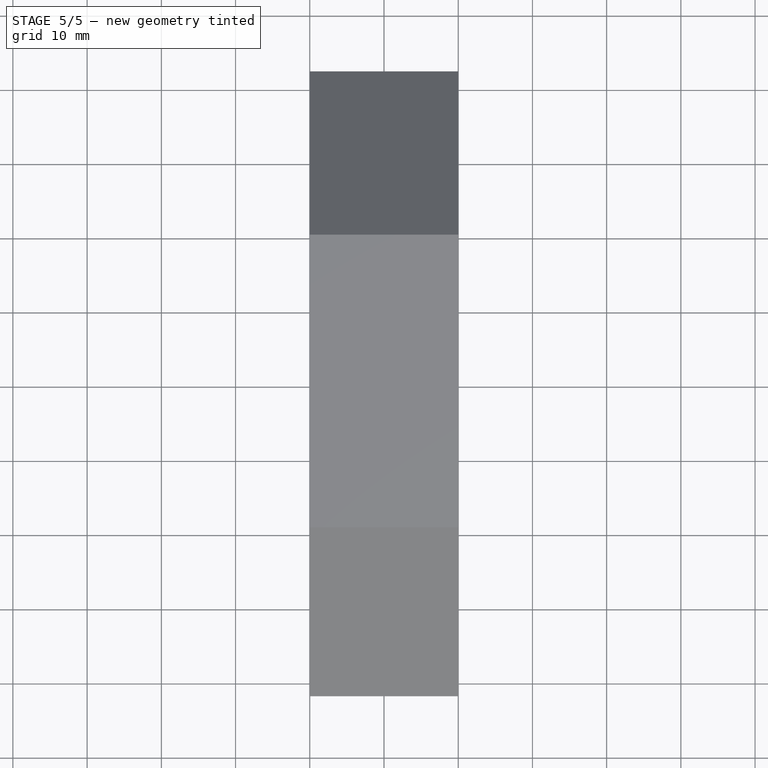
[diagram: stage 5 of 5 — top view after this stage's code; geometry added in this stage tinted green]
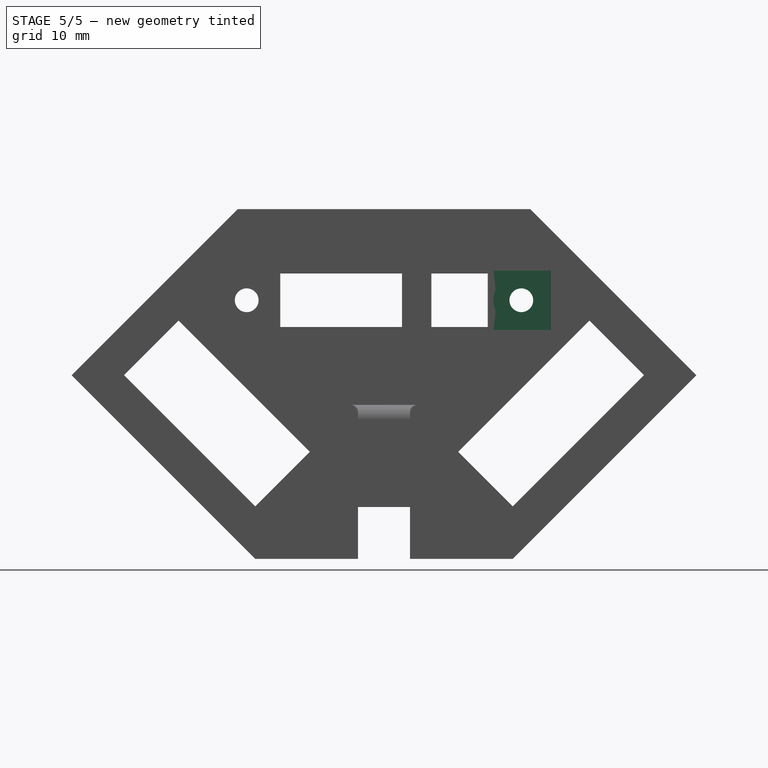
[diagram: stage 5 of 5 — right view after this stage's code; geometry added in this stage tinted green]
FEATURE [Sketcher::SketchObject] Sketch011
  ExternalGeometry = -> [Pocket007]
  FullyConstrained = true
  MapMode = 5
  Placement = pos=(20,-4.88e-14,2.66e-14) rot=(0.57735,0.57735,0.57735;2.0944rad)
  Support = -> [Pocket007]
  sketch-geometry (9):
    g0: Circle CenterX=18.5 CenterY=10.1033 CenterZ=0 NormalX=0 NormalY=0 NormalZ=1 AngleXU=0 Radius=3.75
    g1: GeomPoint X=14.75 Y=10.1033 Z=0
    g2: LineSegment StartX=22.5 StartY=14.1033 StartZ=0 EndX=14.75 EndY=14.1033 EndZ=0
    g3: LineSegment StartX=14.75 StartY=14.1033 StartZ=0 EndX=14.75 EndY=6.10326 EndZ=0
    g4: LineSegment StartX=14.75 StartY=6.10326 StartZ=0 EndX=22.5 EndY=6.10326 EndZ=0
    g5: LineSegment StartX=22.5 StartY=6.10326 StartZ=0 EndX=22.5 EndY=14.1033 EndZ=0
    g6: GeomPoint X=18.5 Y=13.8533 Z=0
    g7: GeomPoint X=22.25 Y=10.1033 Z=0
    g8: GeomPoint X=18.5 Y=6.35326 Z=0
  constraints (22):
    c: Radius(g0) = 3.75
    c: Symmetric(g-3,g-3,g1)
    c: Horizontal(g0,g1)
    c: PointOnObject(g1,g0)
    c: Coincident(g2,g3)
    c: Coincident(g3,g4)
    c: Coincident(g4,g5)
    c: Coincident(g5,g2)
    c: Horizontal(g2)
    c: Horizontal(g4)
    c: Vertical(g3)
    c: Vertical(g5)
    c: PointOnObject(g6,g0)
    c: PointOnObject(g7,g0)
    c: PointOnObject(g8,g0)
    c: Vertical(g0,g6)
    c: Vertical(g0,g8)
    c: Horizontal(g0,g7)
    c: PointOnObject(g1,g3)
    c: DistanceX(g2,g7) = -0.25
    c: DistanceY(g6,g2) = 0.25
    c: DistanceY(g4,g8) = 0.25
FEATURE [PartDesign::Pocket] Pocket008
  BaseFeature = -> Pocket007
  Length = 6
  Length2 = 100
  Placement = pos=(0,0,0) rot=(0.57735,0.57735,0.57735;2.0944rad)
  Profile = -> Sketch011
  Type = 0
FEATURE [Sketcher::SketchObject] Sketch012
  ExternalGeometry = -> [Pocket008]
  FullyConstrained = true
  MapMode = 5
  Placement = pos=(14,-3.52e-14,2.02e-14) rot=(0.57735,0.57735,0.57735;2.0944rad)
  Support = -> [Pocket008]
  sketch-geometry (2):
    g0: Circle CenterX=18.5 CenterY=10.1033 CenterZ=0 NormalX=0 NormalY=0 NormalZ=1 AngleXU=0 Radius=3.75
    g1: GeomPoint X=14.75 Y=10.1033 Z=0
  constraints (4):
    c: Radius(g0) = 3.75
    c: Symmetric(g-3,g-3,g1)
    c: Horizontal(g1,g0)
    c: PointOnObject(g1,g0)
FEATURE [PartDesign::Pad] Pad002
  BaseFeature = -> Pocket008
  Direction = (1,1,1)
  Length = 4
  Length2 = 100
  Placement = pos=(0,0,0) rot=(0.57735,0.57735,0.57735;2.0944rad)
  Profile = -> Sketch012
  Type = 0
FEATURE [Sketcher::SketchObject] Sketch013
  ExternalGeometry = -> [Pad002]
  FullyConstrained = true
  MapMode = 5
  Placement = pos=(18,-4.95e-14,3.15e-14) rot=(0.57735,0.57735,0.57735;2.0944rad)
  Support = -> [Pad002]
  sketch-geometry (1):
    g0: Circle CenterX=18.5 CenterY=10.1033 CenterZ=0 NormalX=0 NormalY=0 NormalZ=1 AngleXU=0 Radius=1.6
  constraints (2):
    c: Coincident(g0,g-3)
    c: Radius(g0) = 1.6
FEATURE [PartDesign::Pocket] Pocket009
  BaseFeature = -> Pad002
  Length = 20
  Length2 = 100
  Placement = pos=(0,0,0) rot=(0.57735,0.57735,0.57735;2.0944rad)
  Profile = -> Sketch013
  Type = 0
FEATURE [PartDesign::Body] Body001  label="Body"
  Group = -> [Sketch,Pad,Sketch001,Pocket,Sketch002,Pocket001,Sketch003,Pocket002,Sketch004,Pocket003,Sketch005,Pocket004,Fillet,Fillet001,Fillet002,Sketch007,Pocket005,Sketch008,Pocket006,Sketch009,Pad001,Sketch010,Pocket007,Sketch011,Pocket008,Sketch012,Pad002,Sketch013,Pocket009]
  Origin = -> Origin001
  Tip = -> Pocket009
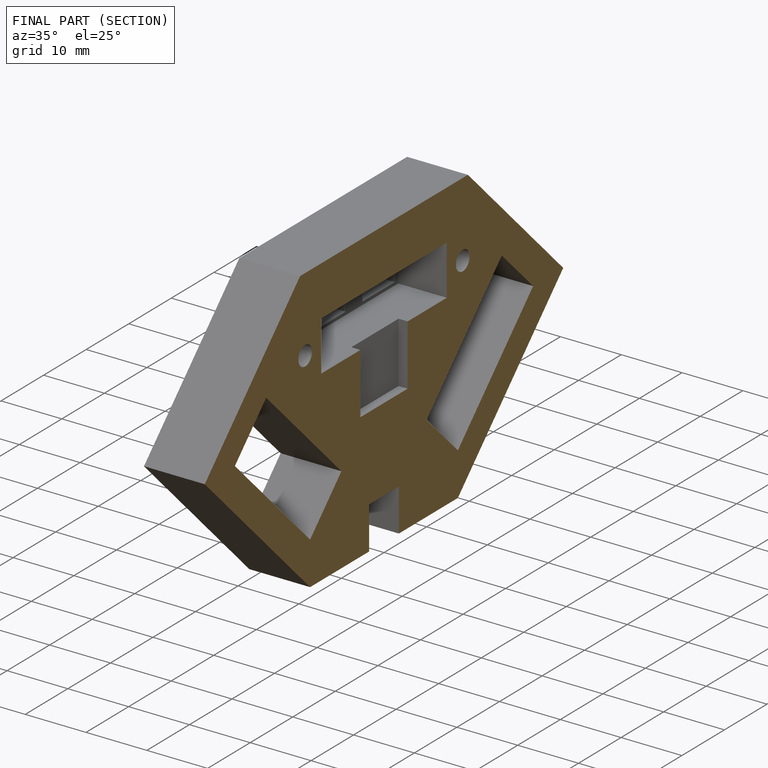
[diagram: finished part — half-section view (interior)]
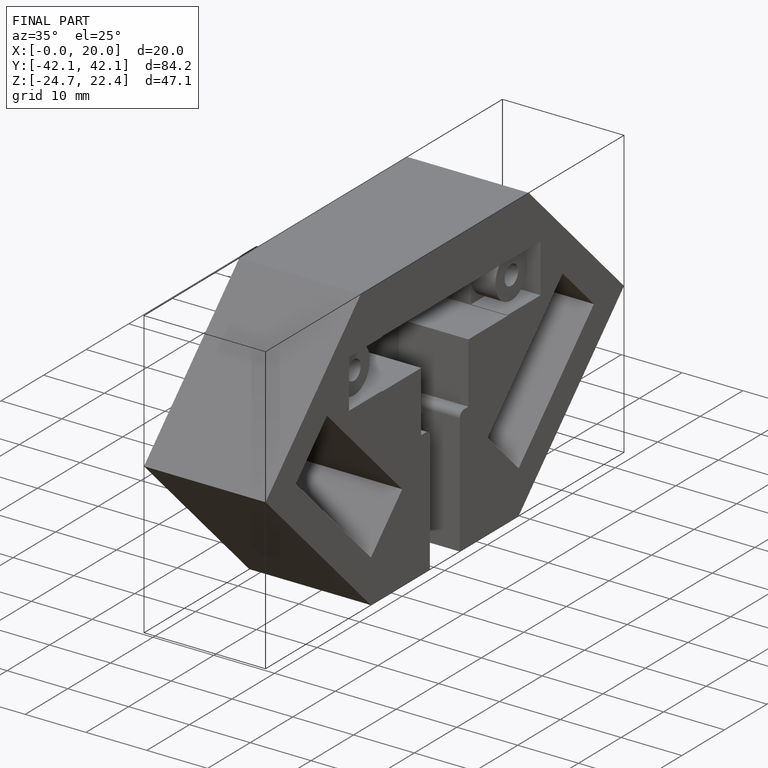
[diagram: finished part — iso view with bounding-box wireframe]
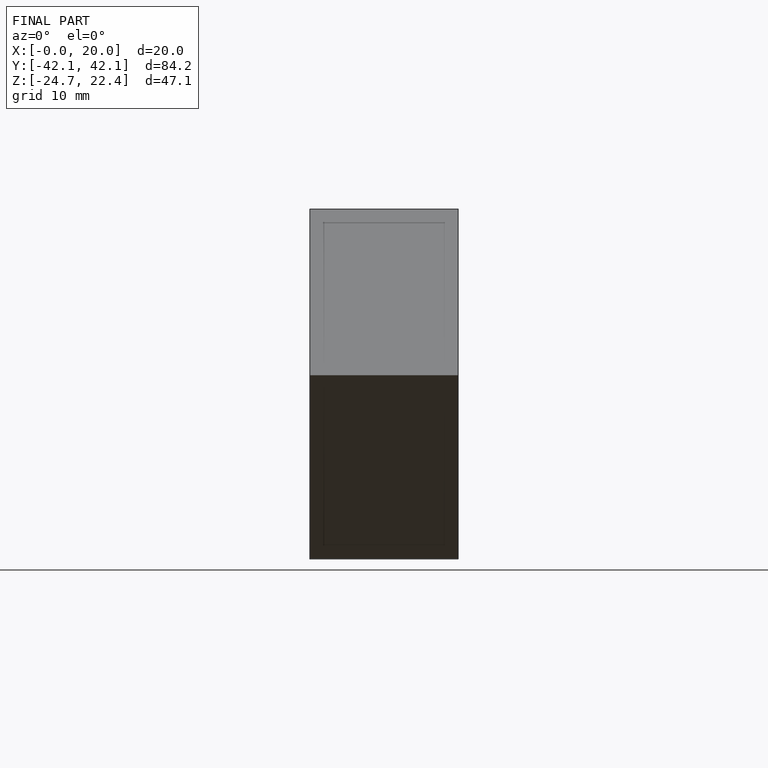
[diagram: finished part — front view with bounding-box wireframe]
